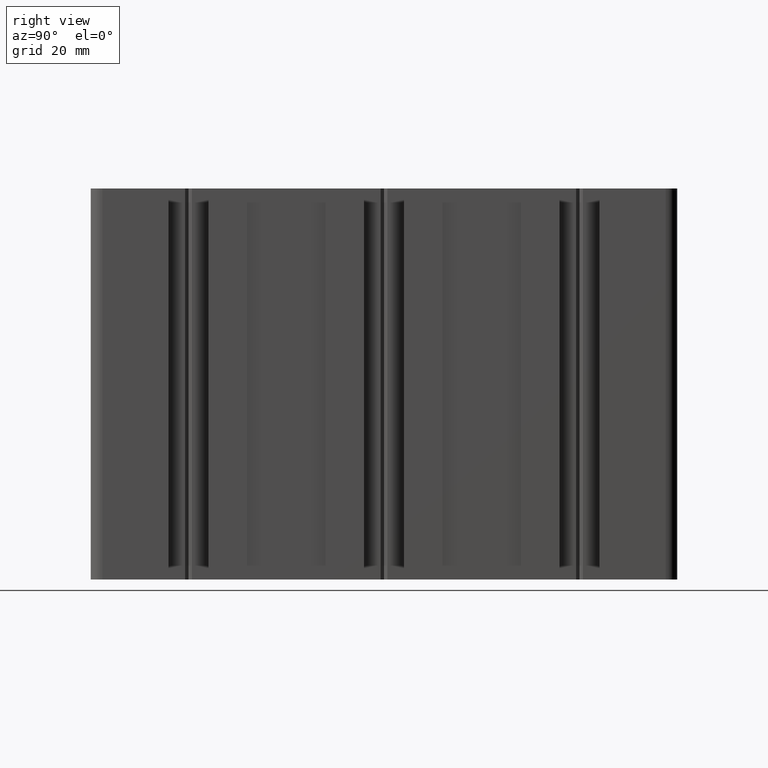
[diagram: clean part render]
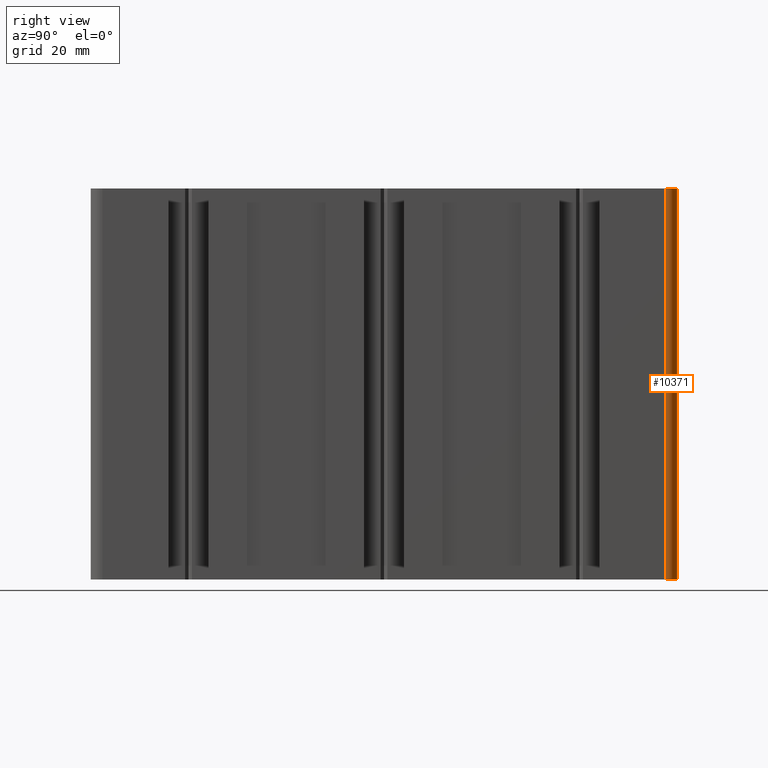
[diagram: same view with one face highlighted and labeled with its STEP entity id]
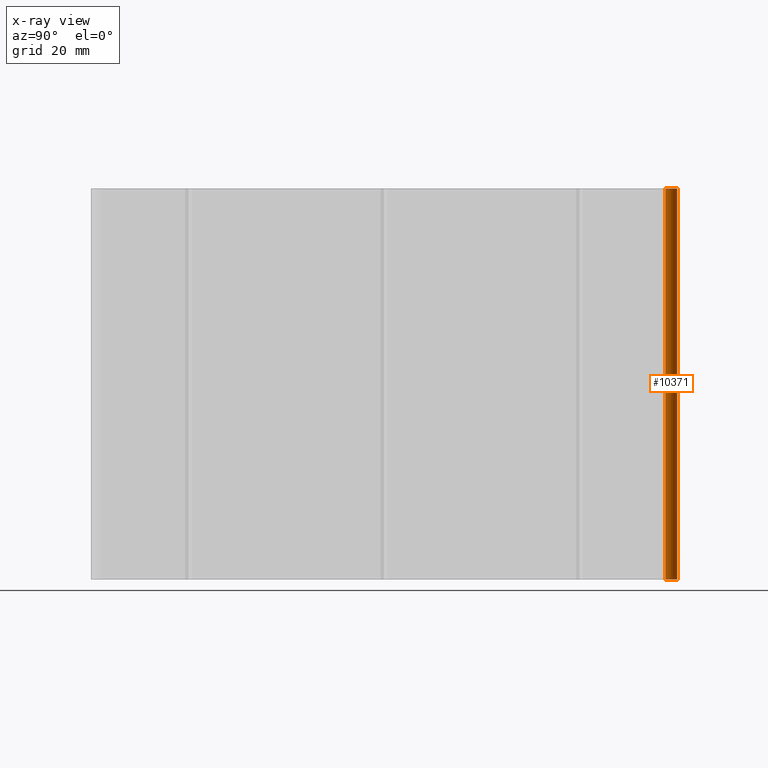
[diagram: x-ray of the same camera — body ghosted, the highlighted face saturated]
A machine part, right view. The second image highlights one B-rep face of the part: STEP entity #10371.
The next image is the same camera in x-ray: the body ghosted, the highlighted face saturated — about 0% of this face is hidden behind the body in this view.
In plain terms, the highlighted cylindrical surface (edge-blend (fillet) strip) has radius 3 mm, axis along (-0, -0, -1).
Its self-contained STEP definition (entity closure, byte-faithful):
#1807 = VERTEX_POINT ( 'NONE', #13058 ) ;
#2506 = CARTESIAN_POINT ( 'NONE',  ( 21.99999999999994700, 72.00000000000001400, 100.0000000000000000 ) ) ;
#2512 = LINE ( 'NONE', #2560, #2559 ) ;
#2513 = CYLINDRICAL_SURFACE ( 'NONE', #2515, 2.999999999999995600 ) ;
#2515 = AXIS2_PLACEMENT_3D ( 'NONE', #2506, #2517, #2552 ) ;
#2516 = FACE_OUTER_BOUND ( 'NONE', #10347, .T. ) ;
#2517 = DIRECTION ( 'NONE',  ( -0.0000000000000000000, -0.0000000000000000000, -1.000000000000000000 ) ) ;
#2552 = DIRECTION ( 'NONE',  ( -1.000000000000000000, 0.0000000000000000000, 0.0000000000000000000 ) ) ;
#2558 = DIRECTION ( 'NONE',  ( -0.0000000000000000000, -0.0000000000000000000, -1.000000000000000000 ) ) ;
#2559 = VECTOR ( 'NONE', #2558, 1000.000000000000000 ) ;
#2560 = CARTESIAN_POINT ( 'NONE',  ( 22.00000000000000000, 75.00000000000000000, 100.0000000000000000 ) ) ;
#2588 = DIRECTION ( 'NONE',  ( -0.0000000000000000000, -0.0000000000000000000, -1.000000000000000000 ) ) ;
#2589 = VECTOR ( 'NONE', #2588, 1000.000000000000000 ) ;
#2590 = CARTESIAN_POINT ( 'NONE',  ( 24.99999999999994300, 72.00000000000001400, 100.0000000000000000 ) ) ;
#2591 = LINE ( 'NONE', #2590, #2589 ) ;
#4596 = VERTEX_POINT ( 'NONE', #13256 ) ;
#4598 = EDGE_CURVE ( 'NONE', #4596, #1807, #13251, .T. ) ;
#7975 = VERTEX_POINT ( 'NONE', #15869 ) ;
#7977 = VERTEX_POINT ( 'NONE', #15854 ) ;
#7982 = EDGE_CURVE ( 'NONE', #7975, #7977, #15862, .T. ) ;
#10347 = EDGE_LOOP ( 'NONE', ( #10372, #10370, #10375, #10374 ) ) ;
#10369 = EDGE_CURVE ( 'NONE', #1807, #7977, #2512, .T. ) ;
#10370 = ORIENTED_EDGE ( 'NONE', *, *, #10369, .F. ) ;
#10371 = ADVANCED_FACE ( 'NONE', ( #2516 ), #2513, .T. ) ;
#10372 = ORIENTED_EDGE ( 'NONE', *, *, #7982, .T. ) ;
#10374 = ORIENTED_EDGE ( 'NONE', *, *, #10385, .T. ) ;
#10375 = ORIENTED_EDGE ( 'NONE', *, *, #4598, .F. ) ;
#10385 = EDGE_CURVE ( 'NONE', #4596, #7975, #2591, .T. ) ;
#13058 = CARTESIAN_POINT ( 'NONE',  ( 22.00000000000000000, 75.00000000000000000, 100.0000000000000000 ) ) ;
#13244 = DIRECTION ( 'NONE',  ( 1.000000000000000000, 0.0000000000000000000, 0.0000000000000000000 ) ) ;
#13245 = DIRECTION ( 'NONE',  ( 0.0000000000000000000, 0.0000000000000000000, 1.000000000000000000 ) ) ;
#13246 = CARTESIAN_POINT ( 'NONE',  ( 21.99999999999994700, 72.00000000000001400, 100.0000000000000000 ) ) ;
#13251 = CIRCLE ( 'NONE', #13260, 2.999999999999995600 ) ;
#13256 = CARTESIAN_POINT ( 'NONE',  ( 24.99999999999994300, 72.00000000000001400, 100.0000000000000000 ) ) ;
#13260 = AXIS2_PLACEMENT_3D ( 'NONE', #13246, #13245, #13244 ) ;
#15813 = CARTESIAN_POINT ( 'NONE',  ( 21.99999999999994700, 72.00000000000001400, 0.0000000000000000000 ) ) ;
#15845 = DIRECTION ( 'NONE',  ( 1.000000000000000000, 0.0000000000000000000, 0.0000000000000000000 ) ) ;
#15846 = DIRECTION ( 'NONE',  ( 0.0000000000000000000, 0.0000000000000000000, 1.000000000000000000 ) ) ;
#15854 = CARTESIAN_POINT ( 'NONE',  ( 22.00000000000000000, 75.00000000000000000, 0.0000000000000000000 ) ) ;
#15862 = CIRCLE ( 'NONE', #15863, 2.999999999999995600 ) ;
#15863 = AXIS2_PLACEMENT_3D ( 'NONE', #15813, #15846, #15845 ) ;
#15869 = CARTESIAN_POINT ( 'NONE',  ( 24.99999999999994300, 72.00000000000001400, 0.0000000000000000000 ) ) ;